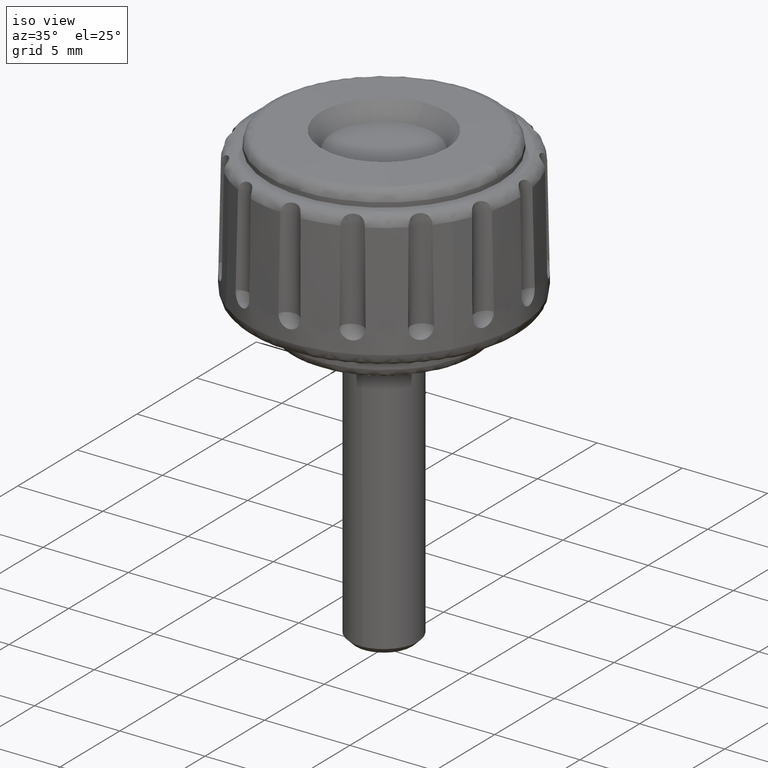
[diagram: clean part render]
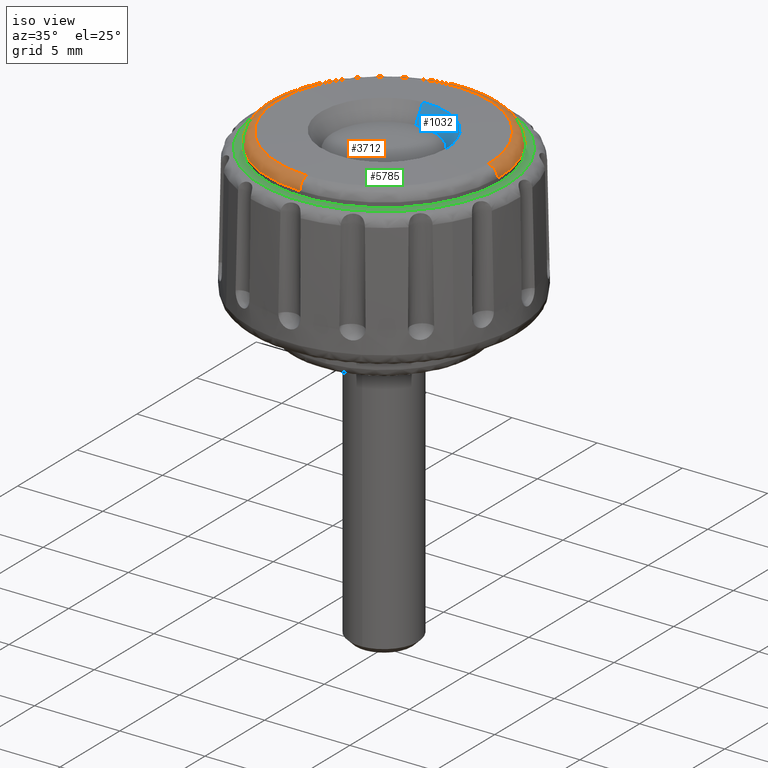
[diagram: same view with three faces highlighted in distinct colors, each labeled with its STEP entity id]
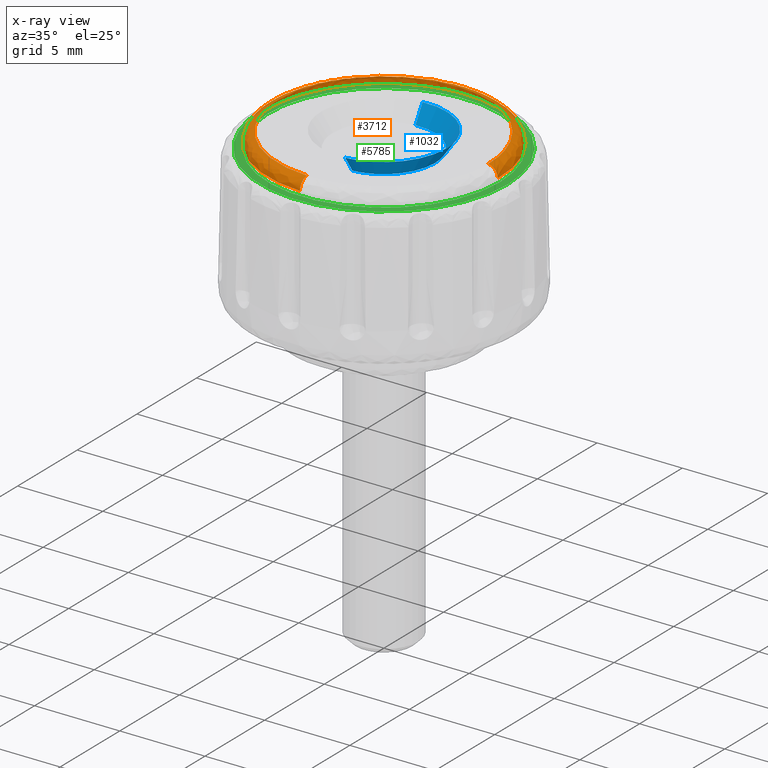
[diagram: x-ray of the same camera — body ghosted, the three highlighted faces saturated]
A machine part, iso view with three faces highlighted in distinct colors.
The next image is the same camera in x-ray (body ghosted, the three faces saturated) — at least one of them is partly hidden behind the body in this view.
Their STEP definitions:

[orange] entity #3712 — the highlighted face is a freeform B-spline surface patch.
#1464=CARTESIAN_POINT('',(-6.355045648944325,2.419384017868745,10.271299178947810));
#1465=VERTEX_POINT('',#1464);
#1471=CARTESIAN_POINT('',(-0.415133521013907,6.787333102326153,10.271297685847131));
#1472=VERTEX_POINT('',#1471);
#1473=CARTESIAN_POINT('',(-6.355045648944325,2.419384017868745,10.271299178947810));
#1474=CARTESIAN_POINT('',(-6.006883916508984,3.333869963193838,10.271298602147031));
#1475=CARTESIAN_POINT('',(-5.462020353334892,4.171598035517674,10.271298219214430));
#1476=CARTESIAN_POINT('',(-4.747526549143332,4.868355865187717,10.271298088565031));
#1477=CARTESIAN_POINT('',(-3.579075594497526,6.007802206721886,10.271297874906899));
#1478=CARTESIAN_POINT('',(-2.040831290683421,6.688045583376658,10.271297729982450));
#1479=CARTESIAN_POINT('',(-0.415133521013907,6.787333102326153,10.271297685847131));
#1480=B_SPLINE_CURVE_WITH_KNOTS('',3,(#1473,#1474,#1475,#1476,#1477,#1478,#1479),.UNSPECIFIED.,.F.,.U.,(4,3,4),(2.505379912954084,5.499338221479113,10.395522657569620),.UNSPECIFIED.);
#1481=EDGE_CURVE('',#1465,#1472,#1480,.T.);
#1565=CARTESIAN_POINT('',(6.797851488505748,-0.170884581007570,10.271301773317809));
#1566=VERTEX_POINT('',#1565);
#1567=CARTESIAN_POINT('',(-0.415133521013907,6.787333102326153,10.271297685847131));
#1568=CARTESIAN_POINT('',(-0.220881848376027,6.799197386506510,10.271297680573509));
#1569=CARTESIAN_POINT('',(-0.025381567136175,6.802767121056196,10.271297676738900));
#1570=CARTESIAN_POINT('',(0.170885655535771,6.797834596081759,10.271297674397969));
#1571=CARTESIAN_POINT('',(1.973813233743357,6.752505749306405,10.271297745115820));
#1572=CARTESIAN_POINT('',(3.684832169144615,5.992867878048057,10.271298049054730));
#1573=CARTESIAN_POINT('',(4.927645201792214,4.685960565346338,10.271298290884150));
#1574=CARTESIAN_POINT('',(6.166489717237371,3.383226433981000,10.271298531941360));
#1575=CARTESIAN_POINT('',(6.843323027001162,1.637982570783854,10.271299879622090));
#1576=CARTESIAN_POINT('',(6.797851488505748,-0.170884581007570,10.271301773317809));
#1577=B_SPLINE_CURVE_WITH_KNOTS('',3,(#1567,#1568,#1569,#1570,#1571,#1572,#1573,#1574,#1575,#1576),.UNSPECIFIED.,.F.,.U.,(4,3,3,4),(10.395522657569620,10.980558780376461,16.354752259556150,21.711785008431981),.UNSPECIFIED.);
#1578=EDGE_CURVE('',#1472,#1566,#1577,.T.);
#1580=CARTESIAN_POINT('',(-0.170884559555309,-6.797851489057097,10.271300005122569));
#1581=VERTEX_POINT('',#1580);
#1597=CARTESIAN_POINT('',(-6.799999000000001,0.0,10.271300999999800));
#1598=VERTEX_POINT('',#1597);
#1599=CARTESIAN_POINT('',(-0.170884559555309,-6.797851489057097,10.271300005122576));
#1600=CARTESIAN_POINT('',(-6.799999000000000,-6.631208708394714,10.271300999999799));
#1601=CARTESIAN_POINT('',(-6.799999000000001,0.0,10.271300999999800));
#1609=(BOUNDED_CURVE()B_SPLINE_CURVE(2,(#1599,#1600,#1601),.UNSPECIFIED.,.F.,.U.)B_SPLINE_CURVE_WITH_KNOTS((3,3),(0.754420104918495,1.0),.UNSPECIFIED.)CURVE()GEOMETRIC_REPRESENTATION_ITEM()RATIONAL_B_SPLINE_CURVE((0.989826165166973,0.712285256214832,1.0))REPRESENTATION_ITEM(''));
#1610=EDGE_CURVE('',#1581,#1598,#1609,.T.);
#1612=CARTESIAN_POINT('',(-6.799999000000001,0.0,10.271300999999800));
#1613=CARTESIAN_POINT('',(-6.799998132118307,0.835126307232424,10.271300280045470));
#1614=CARTESIAN_POINT('',(-6.646392519646025,1.654130076884312,10.271299661618171));
#1615=CARTESIAN_POINT('',(-6.355045648944325,2.419384017868745,10.271299178947810));
#1616=B_SPLINE_CURVE_WITH_KNOTS('',3,(#1612,#1613,#1614,#1615),.UNSPECIFIED.,.F.,.U.,(4,4),(0.0,2.505379912954084),.UNSPECIFIED.);
#1617=EDGE_CURVE('',#1598,#1465,#1616,.T.);
#3565=CARTESIAN_POINT('',(-0.025384326051400,-6.180109582171288,10.870944212166055));
#3566=CARTESIAN_POINT('',(-0.090044946480416,-6.178484141276829,10.870944212166059));
#3567=CARTESIAN_POINT('',(-6.332118144826710,-6.021570691088923,10.870944212166060));
#3568=CARTESIAN_POINT('',(-6.176844417957816,0.155273726868894,10.870944212166060));
#3569=CARTESIAN_POINT('',(-6.021570691088923,6.332118144826710,10.870944212166060));
#3570=CARTESIAN_POINT('',(0.155273726868893,6.176844417957816,10.870944212166060));
#3571=CARTESIAN_POINT('',(6.332118144826710,6.021570691088923,10.870944212166060));
#3572=CARTESIAN_POINT('',(6.175204695366290,-0.220502478317806,10.870944212166062));
#3573=CARTESIAN_POINT('',(6.173579255186667,-0.285163070310302,10.870944212166064));
#3574=CARTESIAN_POINT('',(-0.025394924431976,-6.182689881259222,10.871013175918495));
#3575=CARTESIAN_POINT('',(-0.090082541751209,-6.181063761716009,10.871013175918494));
#3576=CARTESIAN_POINT('',(-6.334761910031284,-6.024084797538908,10.871013175918495));
#3577=CARTESIAN_POINT('',(-6.179423353785094,0.155338556246187,10.871013175918494));
#3578=CARTESIAN_POINT('',(-6.024084797538908,6.334761910031284,10.871013175918495));
#3579=CARTESIAN_POINT('',(0.155338556246187,6.179423353785094,10.871013175918494));
#3580=CARTESIAN_POINT('',(6.334761910031284,6.024084797538908,10.871013175918495));
#3581=CARTESIAN_POINT('',(6.177782946581966,-0.220594541789517,10.871013175918492));
#3582=CARTESIAN_POINT('',(6.176156827753892,-0.285282130660357,10.871013175918492));
#3583=CARTESIAN_POINT('',(-0.028115209770912,-6.844975003793400,10.888714095724483));
#3584=CARTESIAN_POINT('',(-0.099732116345389,-6.843174695539188,10.888714095724483));
#3585=CARTESIAN_POINT('',(-7.013336874712420,-6.669380261959281,10.888714095724486));
#3586=CARTESIAN_POINT('',(-6.841358568335852,0.171978306376568,10.888714095724483));
#3587=CARTESIAN_POINT('',(-6.669380261959284,7.013336874712420,10.888714095724486));
#3588=CARTESIAN_POINT('',(0.171978306376568,6.841358568335852,10.888714095724483));
#3589=CARTESIAN_POINT('',(7.013336874712420,6.669380261959284,10.888714095724486));
#3590=CARTESIAN_POINT('',(6.839542441938264,-0.244224464354821,10.888714095724481));
#3591=CARTESIAN_POINT('',(6.837742134475794,-0.315841339433533,10.888714095724483));
#3592=CARTESIAN_POINT('',(-0.027930695755955,-6.800052919607418,10.230454129936032));
#3593=CARTESIAN_POINT('',(-0.099077596128145,-6.798264426385241,10.230454129936033));
#3594=CARTESIAN_POINT('',(-6.967309868136666,-6.625610567923874,10.230454129936032));
#3595=CARTESIAN_POINT('',(-6.796460218030270,0.170849650106395,10.230454129936033));
#3596=CARTESIAN_POINT('',(-6.625610567923874,6.967309868136664,10.230454129936032));
#3597=CARTESIAN_POINT('',(0.170849650106395,6.796460218030270,10.230454129936033));
#3598=CARTESIAN_POINT('',(6.967309868136664,6.625610567923875,10.230454129936032));
#3599=CARTESIAN_POINT('',(6.794656010475757,-0.242621672242075,10.230454129936033));
#3600=CARTESIAN_POINT('',(6.792867518040127,-0.313768541325201,10.230454129936032));
#3608=(BOUNDED_SURFACE()B_SPLINE_SURFACE(2,2,((#3565,#3574,#3583,#3592),(#3566,#3575,#3584,#3593),(#3567,#3576,#3585,#3594),(#3568,#3577,#3586,#3595),(#3569,#3578,#3587,#3596),(#3570,#3579,#3588,#3597),(#3571,#3580,#3589,#3598),(#3572,#3581,#3590,#3599),(#3573,#3582,#3591,#3600)),.UNSPECIFIED.,.F.,.F.,.U.)B_SPLINE_SURFACE_WITH_KNOTS((3,1,2,2,1,3),(3,1,3),(0.0,0.168964592688025,11.433265973529601,22.697567354371159,33.961868735212732,34.130833252608163),(0.0,0.006201898829711,1.067774931391710),.UNSPECIFIED.)GEOMETRIC_REPRESENTATION_ITEM()RATIONAL_B_SPLINE_SURFACE(((0.926717079498161,0.924955252874813,0.621623264797817,0.924704628839997),(0.922681103850718,0.920926950215712,0.618916013130494,0.920677417681768),(0.649580199656521,0.648345251348053,0.435725393857172,0.648169577008844),(0.918645128203275,0.916898647556610,0.616208761463171,0.916650206523540),(0.649580199656521,0.648345251348053,0.435725393857172,0.648169577008844),(0.918645128203275,0.916898647556610,0.616208761463171,0.916650206523540),(0.649580199656521,0.648345251348053,0.435725393857172,0.648169577008844),(0.922681102052240,0.920926948420653,0.618916011924111,0.920677415887196),(0.926717075901205,0.924955249284696,0.621623262385051,0.924704625250852)))REPRESENTATION_ITEM('')SURFACE());
#3609=ORIENTED_EDGE('',*,*,#1610,.F.);
#3610=CARTESIAN_POINT('',(-0.156432296181891,-6.222932717152220,10.870779798246550));
#3611=VERTEX_POINT('',#3610);
#3612=CARTESIAN_POINT('',(-0.156432296181891,-6.222932717152220,10.870779798246549));
#3613=CARTESIAN_POINT('',(-0.170884543712437,-6.797848298164927,10.846893063486869));
#3614=CARTESIAN_POINT('',(-0.170884559555309,-6.797851489057097,10.271300005122573));
#3622=(BOUNDED_CURVE()B_SPLINE_CURVE(2,(#3612,#3613,#3614),.UNSPECIFIED.,.F.,.U.)B_SPLINE_CURVE_WITH_KNOTS((3,3),(-1.725631950937387,-0.270367032305007),.UNSPECIFIED.)CURVE()GEOMETRIC_REPRESENTATION_ITEM()RATIONAL_B_SPLINE_CURVE((0.889236349179346,0.642192519716579,0.890598508742837))REPRESENTATION_ITEM(''));
#3623=EDGE_CURVE('',#3611,#1581,#3622,.T.);
#3624=ORIENTED_EDGE('',*,*,#3623,.F.);
#3625=CARTESIAN_POINT('',(-6.224898594377520,0.0,10.870779798764360));
#3626=VERTEX_POINT('',#3625);
#3627=CARTESIAN_POINT('',(-0.156432296181891,-6.222932717152220,10.870779798246545));
#3628=CARTESIAN_POINT('',(-6.224898594377521,-6.070383390574622,10.870779798764360));
#3629=CARTESIAN_POINT('',(-6.224898594377520,0.0,10.870779798764360));
#3637=(BOUNDED_CURVE()B_SPLINE_CURVE(2,(#3627,#3628,#3629),.UNSPECIFIED.,.F.,.U.)B_SPLINE_CURVE_WITH_KNOTS((3,3),(0.754420108233949,1.0),.UNSPECIFIED.)CURVE()GEOMETRIC_REPRESENTATION_ITEM()RATIONAL_B_SPLINE_CURVE((0.989826157673086,0.712285260099128,1.0))REPRESENTATION_ITEM(''));
#3638=EDGE_CURVE('',#3611,#3626,#3637,.T.);
#3639=ORIENTED_EDGE('',*,*,#3638,.T.);
#3640=CARTESIAN_POINT('',(6.222932735984559,-0.156432296652698,10.870779797464101));
#3641=VERTEX_POINT('',#3640);
#3642=CARTESIAN_POINT('',(-6.224898594377520,0.0,10.870779798764360));
#3643=CARTESIAN_POINT('',(-6.225428288926094,0.828443818781492,10.870757797845600));
#3644=CARTESIAN_POINT('',(-6.057743514984760,1.656746444434146,10.870768468207080));
#3645=CARTESIAN_POINT('',(-5.733117575867198,2.419032988718875,10.870872047049820));
#3646=CARTESIAN_POINT('',(-5.418164416272751,3.158605914688489,10.870972539585569));
#3647=CARTESIAN_POINT('',(-4.957970534058402,3.836137524522982,10.871113651535230));
#3648=CARTESIAN_POINT('',(-4.382542894389676,4.397855091835266,10.871233754897469));
#3649=CARTESIAN_POINT('',(-3.873672803249580,4.894600903068377,10.871339966356020));
#3650=CARTESIAN_POINT('',(-3.279385524289549,5.303711425081450,10.871371953526220));
#3651=CARTESIAN_POINT('',(-2.631059577851976,5.596624269461654,10.871089377129630));
#3652=CARTESIAN_POINT('',(-2.553834433822436,5.631514492072144,10.871055718129790));
#3653=CARTESIAN_POINT('',(-2.477086853337319,5.667546512173648,10.871100613934050));
#3654=CARTESIAN_POINT('',(-2.398653138198732,5.699814683244703,10.871082402892419));
#3655=CARTESIAN_POINT('',(-2.228347639659009,5.769879539301959,10.871042860706790));
#3656=CARTESIAN_POINT('',(-2.056292315356216,5.836162584679627,10.871111956475580));
#3657=CARTESIAN_POINT('',(-1.880208911263218,5.891200111244644,10.871082402892419));
#3658=CARTESIAN_POINT('',(-1.692331776441478,5.949923946417944,10.871050869866600));
#3659=CARTESIAN_POINT('',(-1.502435066540500,6.002824192252763,10.871105962070340));
#3660=CARTESIAN_POINT('',(-1.309528596280515,6.043720638501263,10.871082402892419));
#3661=CARTESIAN_POINT('',(-0.819547323405180,6.147597365714774,10.871022562722350));
#3662=CARTESIAN_POINT('',(-0.317048742900484,6.198004410169658,10.871128612018261));
#3663=CARTESIAN_POINT('',(0.185636481569827,6.181178156098794,10.871082402892410));
#3664=CARTESIAN_POINT('',(0.574338330351775,6.168167238436929,10.871046671639990));
#3665=CARTESIAN_POINT('',(0.962524149854262,6.122077683987000,10.871110121695841));
#3666=CARTESIAN_POINT('',(1.342914846940735,6.036389981983327,10.871082402892419));
#3667=CARTESIAN_POINT('',(2.181075614539781,5.847583918545688,10.871021326704881));
#3668=CARTESIAN_POINT('',(2.982600642867333,5.488142669324497,10.871152441283980));
#3669=CARTESIAN_POINT('',(3.673845271412658,4.974362795619291,10.871082402892419));
#3670=CARTESIAN_POINT('',(4.063269418514799,4.684916366882555,10.871042945600790));
#3671=CARTESIAN_POINT('',(4.420884161406255,4.352786914947910,10.871114164148450));
#3672=CARTESIAN_POINT('',(4.731966221230796,3.981195797979957,10.871082402892419));
#3673=CARTESIAN_POINT('',(5.337692519373538,3.257648731875674,10.871020558670191));
#3674=CARTESIAN_POINT('',(5.778341344372775,2.400749774731187,10.871155271850730));
#3675=CARTESIAN_POINT('',(6.001718721028094,1.491173558358017,10.871088416120390));
#3676=CARTESIAN_POINT('',(6.009612368627475,1.459031207040554,10.871086053591190));
#3677=CARTESIAN_POINT('',(6.019727521191292,1.427429630414135,10.871146257776211));
#3678=CARTESIAN_POINT('',(6.027117272266367,1.395153956674526,10.871144471048639));
#3679=CARTESIAN_POINT('',(6.052703852879750,1.283401325280060,10.871138284609000));
#3680=CARTESIAN_POINT('',(6.083123262860094,1.172672561339765,10.871267536263190));
#3681=CARTESIAN_POINT('',(6.103296986996438,1.059691992610161,10.871272469409231));
#3682=CARTESIAN_POINT('',(6.123108148422706,0.948741913685396,10.871277313896639));
#3683=CARTESIAN_POINT('',(6.145795728008227,0.838246022632612,10.871295440781960));
#3684=CARTESIAN_POINT('',(6.160141805171354,0.726368091753899,10.871290054761079));
#3685=CARTESIAN_POINT('',(6.170221278567461,0.647763284664065,10.871286270573011));
#3686=CARTESIAN_POINT('',(6.181925176618949,0.569344900413813,10.871249787769580));
#3687=CARTESIAN_POINT('',(6.189290658755425,0.490406091561679,10.871233748641520));
#3688=CARTESIAN_POINT('',(6.209356586227648,0.275351546072212,10.871190052930331));
#3689=CARTESIAN_POINT('',(6.224686075303529,0.059731868519337,10.870932623660661));
#3690=CARTESIAN_POINT('',(6.222932735984559,-0.156432296652698,10.870779797464101));
#3691=B_SPLINE_CURVE_WITH_KNOTS('',3,(#3642,#3643,#3644,#3645,#3646,#3647,#3648,#3649,#3650,#3651,#3652,#3653,#3654,#3655,#3656,#3657,#3658,#3659,#3660,#3661,#3662,#3663,#3664,#3665,#3666,#3667,#3668,#3669,#3670,#3671,#3672,#3673,#3674,#3675,#3676,#3677,#3678,#3679,#3680,#3681,#3682,#3683,#3684,#3685,#3686,#3687,#3688,#3689,#3690),.UNSPECIFIED.,.F.,.U.,(4,3,3,3,3,3,3,3,3,3,3,3,3,3,3,3,4),(0.0,2.485331965238959,4.896609256329413,7.028983181898308,7.282980240679835,7.834491738598542,8.422942425271366,9.917603626068440,11.073351883170400,13.619951612720641,15.054620884260050,17.848150370977638,17.946867338903431,18.288669062950831,18.624327917266221,18.860159946731081,19.502641770892179),.UNSPECIFIED.);
#3692=EDGE_CURVE('',#3626,#3641,#3691,.T.);
#3693=ORIENTED_EDGE('',*,*,#3692,.T.);
#3694=CARTESIAN_POINT('',(6.222932735984558,-0.156432296652698,10.870779797464103));
#3695=CARTESIAN_POINT('',(6.797846602434611,-0.170884501085111,10.846893115838451));
#3696=CARTESIAN_POINT('',(6.797851488505748,-0.170884581007570,10.271301773317813));
#3704=(BOUNDED_CURVE()B_SPLINE_CURVE(2,(#3694,#3695,#3696),.UNSPECIFIED.,.F.,.U.)B_SPLINE_CURVE_WITH_KNOTS((3,3),(-1.725631917933681,-0.270370132172976),.UNSPECIFIED.)CURVE()GEOMETRIC_REPRESENTATION_ITEM()RATIONAL_B_SPLINE_CURVE((0.889236337974016,0.642193051579560,0.890597450483103))REPRESENTATION_ITEM(''));
#3705=EDGE_CURVE('',#3641,#1566,#3704,.T.);
#3706=ORIENTED_EDGE('',*,*,#3705,.T.);
#3707=ORIENTED_EDGE('',*,*,#1578,.F.);
#3708=ORIENTED_EDGE('',*,*,#1481,.F.);
#3709=ORIENTED_EDGE('',*,*,#1617,.F.);
#3710=EDGE_LOOP('',(#3609,#3624,#3639,#3693,#3706,#3707,#3708,#3709));
#3711=FACE_OUTER_BOUND('',#3710,.T.);
#3712=ADVANCED_FACE('',(#3711),#3608,.T.);

[blue] entity #1032 — the highlighted face is a freeform B-spline surface patch.
#871=CARTESIAN_POINT('',(-0.235377287243179,2.990752001201452,10.000000000009640));
#872=VERTEX_POINT('',#871);
#886=CARTESIAN_POINT('',(-0.287849710448553,3.657477354075123,10.955126627765351));
#887=VERTEX_POINT('',#886);
#888=CARTESIAN_POINT('',(-0.235377287243179,2.990752001201452,10.000000000009640));
#889=CARTESIAN_POINT('',(-0.287849710448553,3.657477354075123,10.955126627765351));
#890=QUASI_UNIFORM_CURVE('',1,(#888,#889),.UNSPECIFIED.,.F.,.U.);
#891=EDGE_CURVE('',#872,#887,#890,.T.);
#908=CARTESIAN_POINT('',(0.287849710448552,-3.657477354075123,10.955126627765351));
#909=VERTEX_POINT('',#908);
#925=CARTESIAN_POINT('',(0.235377287243181,-2.990752001201451,10.000000000009640));
#926=VERTEX_POINT('',#925);
#927=CARTESIAN_POINT('',(0.235377287243181,-2.990752001201451,10.000000000009640));
#928=CARTESIAN_POINT('',(0.287849710448552,-3.657477354075123,10.955126627765351));
#929=QUASI_UNIFORM_CURVE('',1,(#927,#928),.UNSPECIFIED.,.F.,.U.);
#930=EDGE_CURVE('',#926,#909,#929,.T.);
#950=CARTESIAN_POINT('',(0.234065476602172,-2.974083867377481,9.976121834305907));
#951=CARTESIAN_POINT('',(3.208149343979652,-2.740018390775310,9.976121834305907));
#952=CARTESIAN_POINT('',(2.974083867377481,0.234065476602172,9.976121834305907));
#953=CARTESIAN_POINT('',(2.740018390775310,3.208149343979652,9.976121834305907));
#954=CARTESIAN_POINT('',(-0.234065476602172,2.974083867377481,9.976121834305907));
#955=CARTESIAN_POINT('',(0.289194316283973,-3.674562191242194,10.979601747600110));
#956=CARTESIAN_POINT('',(3.963756507526167,-3.385367874958221,10.979601747600105));
#957=CARTESIAN_POINT('',(3.674562191242194,0.289194316283973,10.979601747600110));
#958=CARTESIAN_POINT('',(3.385367874958221,3.963756507526167,10.979601747600105));
#959=CARTESIAN_POINT('',(-0.289194316283973,3.674562191242194,10.979601747600110));
#967=(BOUNDED_SURFACE()B_SPLINE_SURFACE(2,1,((#950,#955),(#951,#956),(#952,#957),(#953,#958),(#954,#959)),.UNSPECIFIED.,.F.,.F.,.U.)B_SPLINE_SURFACE_WITH_KNOTS((3,2,3),(2,2),(0.0,6.107039947620632,12.214079895241261),(0.0,1.0),.UNSPECIFIED.)GEOMETRIC_REPRESENTATION_ITEM()RATIONAL_B_SPLINE_SURFACE(((1.0,1.0),(0.707106781186548,0.707106781186548),(1.0,1.0),(0.707106781186548,0.707106781186548),(1.0,1.0)))REPRESENTATION_ITEM('')SURFACE());
#968=CARTESIAN_POINT('',(3.0,0.0,10.0));
#969=VERTEX_POINT('',#968);
#970=CARTESIAN_POINT('',(-0.235377287243180,2.990752001201452,10.000000000009639));
#971=CARTESIAN_POINT('',(-0.117870321082398,3.0,10.0));
#972=CARTESIAN_POINT('',(0.0,3.0,10.0));
#973=CARTESIAN_POINT('',(3.0,3.0,10.000000000000002));
#974=CARTESIAN_POINT('',(3.0,0.0,10.0));
#982=(BOUNDED_CURVE()B_SPLINE_CURVE(2,(#970,#971,#972,#973,#974),.UNSPECIFIED.,.F.,.U.)B_SPLINE_CURVE_WITH_KNOTS((3,2,3),(0.236331300625990,0.250000000000000,0.500000000000000),.UNSPECIFIED.)CURVE()GEOMETRIC_REPRESENTATION_ITEM()RATIONAL_B_SPLINE_CURVE((0.969723356157673,0.983986122573411,1.0,0.707106781186548,1.0))REPRESENTATION_ITEM(''));
#983=EDGE_CURVE('',#872,#969,#982,.T.);
#984=ORIENTED_EDGE('',*,*,#983,.T.);
#985=CARTESIAN_POINT('',(3.0,0.0,10.0));
#986=CARTESIAN_POINT('',(3.0,-2.773171474864639,10.0));
#987=CARTESIAN_POINT('',(0.235377287243181,-2.990752001201451,10.000000000009639));
#995=(BOUNDED_CURVE()B_SPLINE_CURVE(2,(#985,#986,#987),.UNSPECIFIED.,.F.,.U.)B_SPLINE_CURVE_WITH_KNOTS((3,3),(0.500000000000000,0.736331300625989),.UNSPECIFIED.)CURVE()GEOMETRIC_REPRESENTATION_ITEM()RATIONAL_B_SPLINE_CURVE((1.0,0.723120658613137,0.969723356157671))REPRESENTATION_ITEM(''));
#996=EDGE_CURVE('',#969,#926,#995,.T.);
#997=ORIENTED_EDGE('',*,*,#996,.T.);
#998=ORIENTED_EDGE('',*,*,#930,.T.);
#999=CARTESIAN_POINT('',(3.668787000000000,0.0,10.955126627763660));
#1000=VERTEX_POINT('',#999);
#1001=CARTESIAN_POINT('',(3.668787000000000,0.0,10.955126627763660));
#1002=CARTESIAN_POINT('',(3.668787000000001,-3.391391818699923,10.955126627763660));
#1003=CARTESIAN_POINT('',(0.287849710448552,-3.657477354075122,10.955126627765345));
#1011=(BOUNDED_CURVE()B_SPLINE_CURVE(2,(#1001,#1002,#1003),.UNSPECIFIED.,.F.,.U.)B_SPLINE_CURVE_WITH_KNOTS((3,3),(0.500000000000000,0.736331300631794),.UNSPECIFIED.)CURVE()GEOMETRIC_REPRESENTATION_ITEM()RATIONAL_B_SPLINE_CURVE((1.0,0.723120658606337,0.969723356169784))REPRESENTATION_ITEM(''));
#1012=EDGE_CURVE('',#1000,#909,#1011,.T.);
#1013=ORIENTED_EDGE('',*,*,#1012,.F.);
#1014=CARTESIAN_POINT('',(-0.287849710448553,3.657477354075123,10.955126627765351));
#1015=CARTESIAN_POINT('',(-0.144147033828781,3.668787000000000,10.955126627763661));
#1016=CARTESIAN_POINT('',(0.0,3.668787000000000,10.955126627763660));
#1017=CARTESIAN_POINT('',(3.668787000000000,3.668787000000000,10.955126627763660));
#1018=CARTESIAN_POINT('',(3.668787000000000,0.0,10.955126627763660));
#1026=(BOUNDED_CURVE()B_SPLINE_CURVE(2,(#1014,#1015,#1016,#1017,#1018),.UNSPECIFIED.,.F.,.U.)B_SPLINE_CURVE_WITH_KNOTS((3,2,3),(0.236331300631793,0.250000000000000,0.500000000000000),.UNSPECIFIED.)CURVE()GEOMETRIC_REPRESENTATION_ITEM()RATIONAL_B_SPLINE_CURVE((0.969723356169784,0.983986122580210,1.0,0.707106781186548,1.0))REPRESENTATION_ITEM(''));
#1027=EDGE_CURVE('',#887,#1000,#1026,.T.);
#1028=ORIENTED_EDGE('',*,*,#1027,.F.);
#1029=ORIENTED_EDGE('',*,*,#891,.F.);
#1030=EDGE_LOOP('',(#984,#997,#998,#1013,#1028,#1029));
#1031=FACE_OUTER_BOUND('',#1030,.T.);
#1032=ADVANCED_FACE('',(#1031),#967,.F.);

[green] entity #5785 — the highlighted face is a freeform B-spline surface patch.
#1447=CARTESIAN_POINT('',(-6.355045018277783,2.419377857143018,9.999999999744778));
#1448=VERTEX_POINT('',#1447);
#1449=CARTESIAN_POINT('',(-0.415122706958713,6.787316077663892,9.999999998756753));
#1450=VERTEX_POINT('',#1449);
#1451=CARTESIAN_POINT('',(-6.355045018277784,2.419377857143018,9.999999999744777));
#1452=CARTESIAN_POINT('',(-4.794124603751225,6.519489575944120,9.999999999999998));
#1453=CARTESIAN_POINT('',(-0.415122706958713,6.787316077663892,9.999999998756753));
#1461=(BOUNDED_CURVE()B_SPLINE_CURVE(2,(#1451,#1452,#1453),.UNSPECIFIED.,.F.,.U.)B_SPLINE_CURVE_WITH_KNOTS((3,3),(0.060420158170460,0.239333147843314),.UNSPECIFIED.)CURVE()GEOMETRIC_REPRESENTATION_ITEM()RATIONAL_B_SPLINE_CURVE((0.892642272593539,0.784349831120913,0.976072439452539))REPRESENTATION_ITEM(''));
#1462=EDGE_CURVE('',#1448,#1450,#1461,.T.);
#1517=CARTESIAN_POINT('',(-6.799999000000001,0.0,10.0));
#1518=VERTEX_POINT('',#1517);
#1519=CARTESIAN_POINT('',(-6.799999000000001,0.0,10.0));
#1520=CARTESIAN_POINT('',(-6.799999000000002,1.250605242091103,10.0));
#1521=CARTESIAN_POINT('',(-6.355045018277783,2.419377857143017,9.999999999744778));
#1529=(BOUNDED_CURVE()B_SPLINE_CURVE(2,(#1519,#1520,#1521),.UNSPECIFIED.,.F.,.U.)B_SPLINE_CURVE_WITH_KNOTS((3,3),(0.0,0.060420158170460),.UNSPECIFIED.)CURVE()GEOMETRIC_REPRESENTATION_ITEM()RATIONAL_B_SPLINE_CURVE((1.0,0.929213381568944,0.892642272593539))REPRESENTATION_ITEM(''));
#1530=EDGE_CURVE('',#1518,#1448,#1529,.T.);
#1532=CARTESIAN_POINT('',(6.799999000000001,0.0,10.0));
#1533=VERTEX_POINT('',#1532);
#1534=CARTESIAN_POINT('',(6.799999000000001,0.0,10.0));
#1535=CARTESIAN_POINT('',(6.799999000000000,-6.799999000000000,10.000000000000002));
#1536=CARTESIAN_POINT('',(0.0,-6.799999000000001,10.0));
#1537=CARTESIAN_POINT('',(-6.799999000000000,-6.799999000000000,10.000000000000002));
#1538=CARTESIAN_POINT('',(-6.799999000000001,0.0,10.0));
#1546=(BOUNDED_CURVE()B_SPLINE_CURVE(2,(#1534,#1535,#1536,#1537,#1538),.UNSPECIFIED.,.F.,.U.)B_SPLINE_CURVE_WITH_KNOTS((3,2,3),(0.500000000000000,0.750000000000000,1.0),.UNSPECIFIED.)CURVE()GEOMETRIC_REPRESENTATION_ITEM()RATIONAL_B_SPLINE_CURVE((1.0,0.707106781186548,1.0,0.707106781186548,1.0))REPRESENTATION_ITEM(''));
#1547=EDGE_CURVE('',#1533,#1518,#1546,.T.);
#1549=CARTESIAN_POINT('',(-0.415122706958713,6.787316077663892,9.999999998756753));
#1550=CARTESIAN_POINT('',(-0.207755099227646,6.799999000000001,10.0));
#1551=CARTESIAN_POINT('',(0.0,6.799999000000001,10.0));
#1552=CARTESIAN_POINT('',(6.799999000000000,6.799999000000000,10.000000000000002));
#1553=CARTESIAN_POINT('',(6.799999000000001,0.0,10.0));
#1561=(BOUNDED_CURVE()B_SPLINE_CURVE(2,(#1549,#1550,#1551,#1552,#1553),.UNSPECIFIED.,.F.,.U.)B_SPLINE_CURVE_WITH_KNOTS((3,2,3),(0.239333147843314,0.250000000000000,0.500000000000000),.UNSPECIFIED.)CURVE()GEOMETRIC_REPRESENTATION_ITEM()RATIONAL_B_SPLINE_CURVE((0.976072439452539,0.987503005348884,1.0,0.707106781186548,1.0))REPRESENTATION_ITEM(''));
#1562=EDGE_CURVE('',#1450,#1533,#1561,.T.);
#3774=CARTESIAN_POINT('',(-0.182171356558874,7.246841755596723,9.999993999997795));
#3775=VERTEX_POINT('',#3774);
#3776=CARTESIAN_POINT('',(7.246840678469663,0.182171329570759,9.999993999999788));
#3777=VERTEX_POINT('',#3776);
#3778=CARTESIAN_POINT('',(-0.182171356558874,7.246841755596723,9.999993999997795));
#3779=CARTESIAN_POINT('',(-0.091100076833743,7.249131101777009,9.999993999997809));
#3780=CARTESIAN_POINT('',(-0.000000026732358,7.249131094840903,9.999993999997820));
#3781=CARTESIAN_POINT('',(7.069191214993396,7.249130556612283,9.999993999998816));
#3782=CARTESIAN_POINT('',(7.246840678469663,0.182171329570759,9.999993999999788));
#3790=(BOUNDED_CURVE()B_SPLINE_CURVE(2,(#3778,#3779,#3780,#3781,#3782),.UNSPECIFIED.,.F.,.U.)B_SPLINE_CURVE_WITH_KNOTS((3,2,3),(0.245579891771949,0.250000000000000,0.495579891769807),.UNSPECIFIED.)CURVE()GEOMETRIC_REPRESENTATION_ITEM()RATIONAL_B_SPLINE_CURVE((0.989826157686416,0.994821521094329,1.0,0.712285260094727,0.989826157681576))REPRESENTATION_ITEM(''));
#3791=EDGE_CURVE('',#3775,#3777,#3790,.T.);
#4056=CARTESIAN_POINT('',(-7.249130031415930,0.0,9.999993999999790));
#4057=VERTEX_POINT('',#4056);
#4058=CARTESIAN_POINT('',(-7.249130031415930,0.0,9.999993999999790));
#4059=CARTESIAN_POINT('',(-7.249130044954386,7.069191766844705,9.999993999998791));
#4060=CARTESIAN_POINT('',(-0.182171356558874,7.246841755596723,9.999993999997795));
#4068=(BOUNDED_CURVE()B_SPLINE_CURVE(2,(#4058,#4059,#4060),.UNSPECIFIED.,.F.,.U.)B_SPLINE_CURVE_WITH_KNOTS((3,3),(0.0,0.245579891771949),.UNSPECIFIED.)CURVE()GEOMETRIC_REPRESENTATION_ITEM()RATIONAL_B_SPLINE_CURVE((1.0,0.712285260092218,0.989826157686416))REPRESENTATION_ITEM(''));
#4069=EDGE_CURVE('',#4057,#3775,#4068,.T.);
#4639=CARTESIAN_POINT('',(7.249130031415930,0.0,9.999993999999790));
#4640=VERTEX_POINT('',#4639);
#4641=CARTESIAN_POINT('',(7.246840678469663,0.182171329570759,9.999993999999788));
#4642=CARTESIAN_POINT('',(7.249130031415930,0.091100049971361,9.999993999999790));
#4643=CARTESIAN_POINT('',(7.249130031415930,0.0,9.999993999999790));
#4651=(BOUNDED_CURVE()B_SPLINE_CURVE(2,(#4641,#4642,#4643),.UNSPECIFIED.,.F.,.U.)B_SPLINE_CURVE_WITH_KNOTS((3,3),(0.495579891769807,0.500000000000000),.UNSPECIFIED.)CURVE()GEOMETRIC_REPRESENTATION_ITEM()RATIONAL_B_SPLINE_CURVE((0.989826157681576,0.994821521091820,1.0))REPRESENTATION_ITEM(''));
#4652=EDGE_CURVE('',#3777,#4640,#4651,.T.);
#4654=CARTESIAN_POINT('',(7.249130031415930,0.0,9.999993999999790));
#4655=CARTESIAN_POINT('',(7.249130031415930,-7.249130031415930,9.999993999999790));
#4656=CARTESIAN_POINT('',(0.0,-7.249130031415930,9.999993999999790));
#4657=CARTESIAN_POINT('',(-7.249130031415930,-7.249130031415930,9.999993999999790));
#4658=CARTESIAN_POINT('',(-7.249130031415930,0.0,9.999993999999790));
#4666=(BOUNDED_CURVE()B_SPLINE_CURVE(2,(#4654,#4655,#4656,#4657,#4658),.UNSPECIFIED.,.F.,.U.)B_SPLINE_CURVE_WITH_KNOTS((3,2,3),(0.500000000000000,0.750000000000000,1.0),.UNSPECIFIED.)CURVE()GEOMETRIC_REPRESENTATION_ITEM()RATIONAL_B_SPLINE_CURVE((1.0,0.707106781186547,1.0,0.707106781186547,1.0))REPRESENTATION_ITEM(''));
#4667=EDGE_CURVE('',#4640,#4057,#4666,.T.);
#5768=CARTESIAN_POINT('',(-7.973318365652524,-7.973204066236823,9.999997000000001));
#5769=CARTESIAN_POINT('',(7.973318495277070,-7.973204066236823,9.999997000000001));
#5770=CARTESIAN_POINT('',(-7.973318365652524,7.970915920021708,9.999997000000001));
#5771=CARTESIAN_POINT('',(7.973318495277070,7.970915920021708,9.999997000000001));
#5772=B_SPLINE_SURFACE_WITH_KNOTS('',1,1,((#5768,#5770),(#5769,#5771)),.UNSPECIFIED.,.F.,.F.,.U.,(2,2),(2,2),(0.0,15.946636860929591),(0.0,15.944119986258530),.UNSPECIFIED.);
#5773=ORIENTED_EDGE('',*,*,#4667,.F.);
#5774=ORIENTED_EDGE('',*,*,#4652,.F.);
#5775=ORIENTED_EDGE('',*,*,#3791,.F.);
#5776=ORIENTED_EDGE('',*,*,#4069,.F.);
#5777=EDGE_LOOP('',(#5773,#5774,#5775,#5776));
#5778=FACE_OUTER_BOUND('',#5777,.T.);
#5779=ORIENTED_EDGE('',*,*,#1547,.T.);
#5780=ORIENTED_EDGE('',*,*,#1530,.T.);
#5781=ORIENTED_EDGE('',*,*,#1462,.T.);
#5782=ORIENTED_EDGE('',*,*,#1562,.T.);
#5783=EDGE_LOOP('',(#5779,#5780,#5781,#5782));
#5784=FACE_BOUND('',#5783,.T.);
#5785=ADVANCED_FACE('',(#5778,#5784),#5772,.T.);